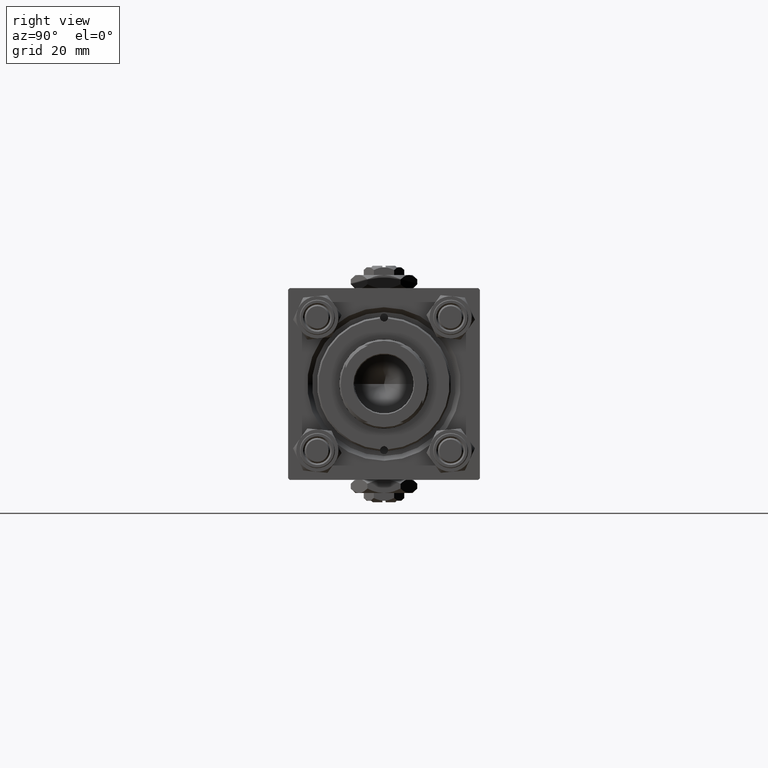
[diagram: clean part render]
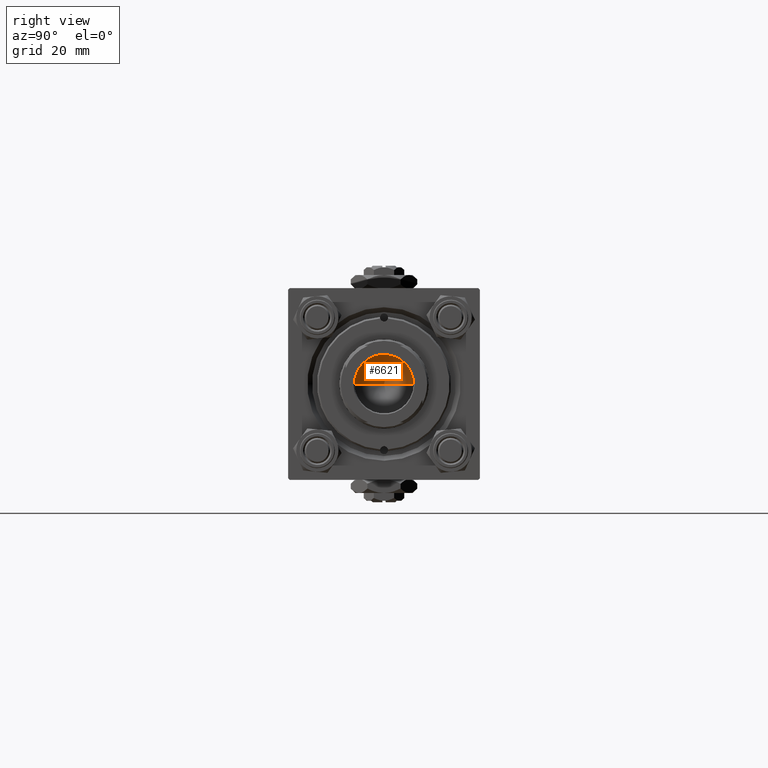
[diagram: same view with one face highlighted and labeled with its STEP entity id]
A machine part, right view. The second image highlights one B-rep face of the part: STEP entity #6621.
In plain terms, the highlighted conical surface has half-angle 59 deg.
Its self-contained STEP definition (entity closure, byte-faithful):
#111 = DIRECTION ( 'NONE',  ( 1.000000000000000000, 0.000000000000000000, 0.000000000000000000 ) ) ;
#808 = ORIENTED_EDGE ( 'NONE', *, *, #31312, .T. ) ;
#1133 = FACE_OUTER_BOUND ( 'NONE', #30117, .T. ) ;
#1510 = CARTESIAN_POINT ( 'NONE',  ( 9.249999999999992895, 0.000000000000000000, 101.0000000000000000 ) ) ;
#2781 = LINE ( 'NONE', #42090, #38209 ) ;
#5459 = LINE ( 'NONE', #1510, #34630 ) ;
#5728 = DIRECTION ( 'NONE',  ( 0.8571673007021117785, 0.000000000000000000, 0.5150380749100550437 ) ) ;
#6621 = ADVANCED_FACE ( 'NONE', ( #1133 ), #51736, .F. ) ;
#8797 = AXIS2_PLACEMENT_3D ( 'NONE', #13795, #45426, #37518 ) ;
#11828 = VERTEX_POINT ( 'NONE', #42653 ) ;
#13795 = CARTESIAN_POINT ( 'NONE',  ( 0.000000000000000000, 0.000000000000000000, 101.0000000000000000 ) ) ;
#15673 = DIRECTION ( 'NONE',  ( -0.000000000000000000, -0.000000000000000000, 1.000000000000000000 ) ) ;
#21279 = EDGE_CURVE ( 'NONE', #32803, #40813, #5459, .T. ) ;
#22164 = ORIENTED_EDGE ( 'NONE', *, *, #21279, .F. ) ;
#24601 = CARTESIAN_POINT ( 'NONE',  ( 9.249999999999992895, 0.000000000000000000, 101.0000000000000000 ) ) ;
#27357 = CIRCLE ( 'NONE', #34098, 9.249999999999992895 ) ;
#30117 = EDGE_LOOP ( 'NONE', ( #22164, #808, #34270 ) ) ;
#31312 = EDGE_CURVE ( 'NONE', #32803, #11828, #2781, .T. ) ;
#32803 = VERTEX_POINT ( 'NONE', #35012 ) ;
#34098 = AXIS2_PLACEMENT_3D ( 'NONE', #43620, #15673, #111 ) ;
#34270 = ORIENTED_EDGE ( 'NONE', *, *, #35057, .T. ) ;
#34630 = VECTOR ( 'NONE', #5728, 1000.000000000000000 ) ;
#35012 = CARTESIAN_POINT ( 'NONE',  ( -9.769621978240258809E-15, 0.000000000000000000, 95.44203927399506426 ) ) ;
#35057 = EDGE_CURVE ( 'NONE', #11828, #40813, #27357, .T. ) ;
#37518 = DIRECTION ( 'NONE',  ( 1.000000000000000000, 0.000000000000000000, 0.000000000000000000 ) ) ;
#38209 = VECTOR ( 'NONE', #43822, 1000.000000000000000 ) ;
#40813 = VERTEX_POINT ( 'NONE', #24601 ) ;
#42090 = CARTESIAN_POINT ( 'NONE',  ( -9.249999999999992895, 1.132798289211300712E-15, 101.0000000000000000 ) ) ;
#42653 = CARTESIAN_POINT ( 'NONE',  ( -9.249999999999992895, 1.132798289211300712E-15, 101.0000000000000000 ) ) ;
#43620 = CARTESIAN_POINT ( 'NONE',  ( 0.000000000000000000, 0.000000000000000000, 101.0000000000000000 ) ) ;
#43822 = DIRECTION ( 'NONE',  ( -0.8571673007021117785, 1.049727191138617956E-16, 0.5150380749100550437 ) ) ;
#45426 = DIRECTION ( 'NONE',  ( -0.000000000000000000, -0.000000000000000000, 1.000000000000000000 ) ) ;
#51736 = CONICAL_SURFACE ( 'NONE', #8797, 9.249999999999992895, 1.029744258676653423 ) ;